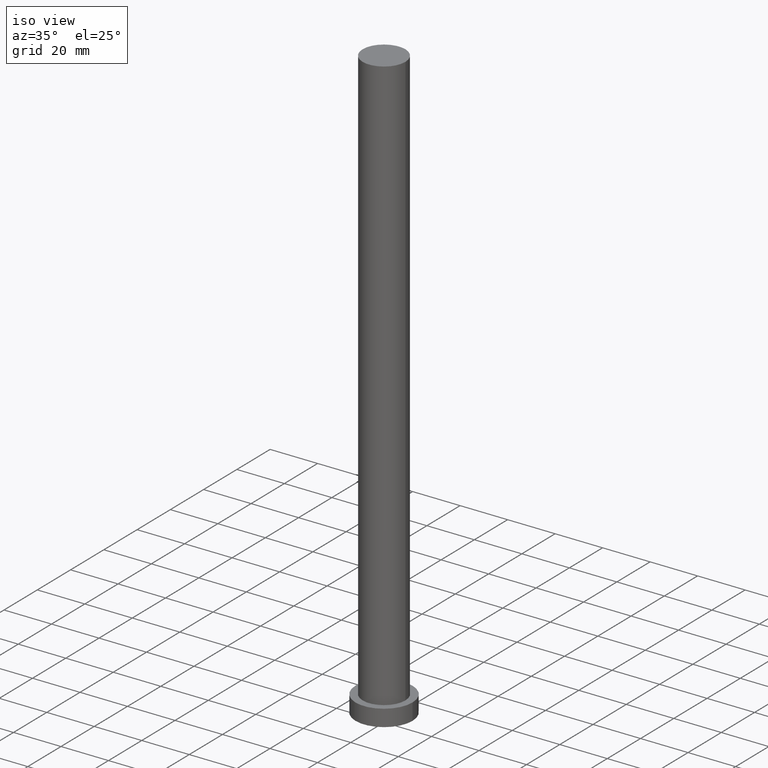
[diagram: clean part render]
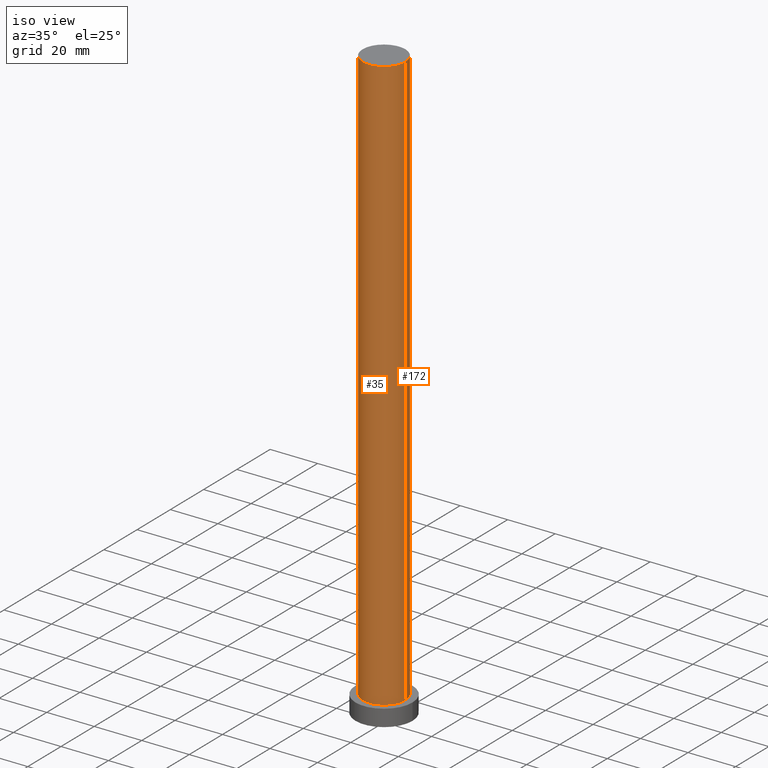
[diagram: same view with one multi-face feature highlighted, each face labeled with its STEP entity id]
A machine part, iso view. The highlighted faces form ONE feature: a constant-radius fillet chain: 2 tangent blend faces with common blend radius 9 mm. The faces share edges in the B-rep.
Their STEP definitions:
[1] entity #35 (Cylinder):
#7 = DIRECTION ( 'NONE',  ( 1.000000000000000000, 0.000000000000000000, 0.000000000000000000 ) ) ;
#16 = CIRCLE ( 'NONE', #204, 9.000000000000000000 ) ;
#21 = VERTEX_POINT ( 'NONE', #54 ) ;
#29 = DIRECTION ( 'NONE',  ( -0.000000000000000000, -0.000000000000000000, -1.000000000000000000 ) ) ;
#31 = DIRECTION ( 'NONE',  ( -0.000000000000000000, -0.000000000000000000, -1.000000000000000000 ) ) ;
#32 = ORIENTED_EDGE ( 'NONE', *, *, #125, .T. ) ;
#35 = ADVANCED_FACE ( 'NONE', ( #230 ), #52, .T. ) ;
#47 = EDGE_LOOP ( 'NONE', ( #121, #243, #248, #32 ) ) ;
#49 = AXIS2_PLACEMENT_3D ( 'NONE', #131, #29, #106 ) ;
#50 = DIRECTION ( 'NONE',  ( -0.000000000000000000, -0.000000000000000000, -1.000000000000000000 ) ) ;
#52 = CYLINDRICAL_SURFACE ( 'NONE', #49, 9.000000000000000000 ) ;
#54 = CARTESIAN_POINT ( 'NONE',  ( -9.000000000000000000, 0.000000000000000000, 250.0000000000000000 ) ) ;
#58 = CARTESIAN_POINT ( 'NONE',  ( 9.000000000000000000, 1.102182119232617714E-15, 7.000000000000000000 ) ) ;
#63 = CARTESIAN_POINT ( 'NONE',  ( 9.000000000000000000, 1.102182119232617714E-15, 250.0000000000000000 ) ) ;
#79 = DIRECTION ( 'NONE',  ( 0.000000000000000000, 0.000000000000000000, 1.000000000000000000 ) ) ;
#87 = CARTESIAN_POINT ( 'NONE',  ( -9.000000000000000000, 0.000000000000000000, 7.000000000000000000 ) ) ;
#99 = VERTEX_POINT ( 'NONE', #63 ) ;
#100 = EDGE_CURVE ( 'NONE', #21, #99, #16, .T. ) ;
#106 = DIRECTION ( 'NONE',  ( -1.000000000000000000, 0.000000000000000000, 0.000000000000000000 ) ) ;
#112 = VERTEX_POINT ( 'NONE', #87 ) ;
#121 = ORIENTED_EDGE ( 'NONE', *, *, #165, .F. ) ;
#125 = EDGE_CURVE ( 'NONE', #112, #137, #152, .T. ) ;
#131 = CARTESIAN_POINT ( 'NONE',  ( 0.000000000000000000, 0.000000000000000000, 250.0000000000000000 ) ) ;
#137 = VERTEX_POINT ( 'NONE', #58 ) ;
#152 = CIRCLE ( 'NONE', #218, 9.000000000000000000 ) ;
#165 = EDGE_CURVE ( 'NONE', #99, #137, #167, .T. ) ;
#166 = VECTOR ( 'NONE', #31, 1000.000000000000000 ) ;
#167 = LINE ( 'NONE', #193, #206 ) ;
#168 = LINE ( 'NONE', #215, #166 ) ;
#189 = DIRECTION ( 'NONE',  ( 0.000000000000000000, 0.000000000000000000, 1.000000000000000000 ) ) ;
#190 = EDGE_CURVE ( 'NONE', #21, #112, #168, .T. ) ;
#193 = CARTESIAN_POINT ( 'NONE',  ( 9.000000000000000000, 1.102182119232617714E-15, 250.0000000000000000 ) ) ;
#204 = AXIS2_PLACEMENT_3D ( 'NONE', #254, #79, #7 ) ;
#206 = VECTOR ( 'NONE', #50, 1000.000000000000000 ) ;
#210 = CARTESIAN_POINT ( 'NONE',  ( 0.000000000000000000, 0.000000000000000000, 7.000000000000000000 ) ) ;
#215 = CARTESIAN_POINT ( 'NONE',  ( -9.000000000000000000, 0.000000000000000000, 250.0000000000000000 ) ) ;
#218 = AXIS2_PLACEMENT_3D ( 'NONE', #210, #189, #247 ) ;
#230 = FACE_OUTER_BOUND ( 'NONE', #47, .T. ) ;
#243 = ORIENTED_EDGE ( 'NONE', *, *, #100, .F. ) ;
#247 = DIRECTION ( 'NONE',  ( 1.000000000000000000, 0.000000000000000000, 0.000000000000000000 ) ) ;
#248 = ORIENTED_EDGE ( 'NONE', *, *, #190, .T. ) ;
#254 = CARTESIAN_POINT ( 'NONE',  ( 0.000000000000000000, 0.000000000000000000, 250.0000000000000000 ) ) ;
[2] entity #172 (Cylinder):
#9 = EDGE_CURVE ( 'NONE', #137, #112, #119, .T. ) ;
#19 = AXIS2_PLACEMENT_3D ( 'NONE', #149, #211, #30 ) ;
#21 = VERTEX_POINT ( 'NONE', #54 ) ;
#30 = DIRECTION ( 'NONE',  ( -1.000000000000000000, 0.000000000000000000, 0.000000000000000000 ) ) ;
#31 = DIRECTION ( 'NONE',  ( -0.000000000000000000, -0.000000000000000000, -1.000000000000000000 ) ) ;
#34 = DIRECTION ( 'NONE',  ( 1.000000000000000000, 0.000000000000000000, 0.000000000000000000 ) ) ;
#41 = AXIS2_PLACEMENT_3D ( 'NONE', #170, #73, #34 ) ;
#46 = ORIENTED_EDGE ( 'NONE', *, *, #165, .T. ) ;
#50 = DIRECTION ( 'NONE',  ( -0.000000000000000000, -0.000000000000000000, -1.000000000000000000 ) ) ;
#53 = FACE_OUTER_BOUND ( 'NONE', #186, .T. ) ;
#54 = CARTESIAN_POINT ( 'NONE',  ( -9.000000000000000000, 0.000000000000000000, 250.0000000000000000 ) ) ;
#58 = CARTESIAN_POINT ( 'NONE',  ( 9.000000000000000000, 1.102182119232617714E-15, 7.000000000000000000 ) ) ;
#63 = CARTESIAN_POINT ( 'NONE',  ( 9.000000000000000000, 1.102182119232617714E-15, 250.0000000000000000 ) ) ;
#73 = DIRECTION ( 'NONE',  ( 0.000000000000000000, 0.000000000000000000, 1.000000000000000000 ) ) ;
#83 = DIRECTION ( 'NONE',  ( 1.000000000000000000, 0.000000000000000000, 0.000000000000000000 ) ) ;
#87 = CARTESIAN_POINT ( 'NONE',  ( -9.000000000000000000, 0.000000000000000000, 7.000000000000000000 ) ) ;
#99 = VERTEX_POINT ( 'NONE', #63 ) ;
#109 = ORIENTED_EDGE ( 'NONE', *, *, #229, .F. ) ;
#112 = VERTEX_POINT ( 'NONE', #87 ) ;
#119 = CIRCLE ( 'NONE', #224, 9.000000000000000000 ) ;
#137 = VERTEX_POINT ( 'NONE', #58 ) ;
#148 = ORIENTED_EDGE ( 'NONE', *, *, #9, .T. ) ;
#149 = CARTESIAN_POINT ( 'NONE',  ( 0.000000000000000000, 0.000000000000000000, 250.0000000000000000 ) ) ;
#163 = CARTESIAN_POINT ( 'NONE',  ( 0.000000000000000000, 0.000000000000000000, 7.000000000000000000 ) ) ;
#165 = EDGE_CURVE ( 'NONE', #99, #137, #167, .T. ) ;
#166 = VECTOR ( 'NONE', #31, 1000.000000000000000 ) ;
#167 = LINE ( 'NONE', #193, #206 ) ;
#168 = LINE ( 'NONE', #215, #166 ) ;
#169 = CYLINDRICAL_SURFACE ( 'NONE', #19, 9.000000000000000000 ) ;
#170 = CARTESIAN_POINT ( 'NONE',  ( 0.000000000000000000, 0.000000000000000000, 250.0000000000000000 ) ) ;
#172 = ADVANCED_FACE ( 'NONE', ( #53 ), #169, .T. ) ;
#184 = DIRECTION ( 'NONE',  ( 0.000000000000000000, 0.000000000000000000, 1.000000000000000000 ) ) ;
#186 = EDGE_LOOP ( 'NONE', ( #109, #46, #148, #194 ) ) ;
#190 = EDGE_CURVE ( 'NONE', #21, #112, #168, .T. ) ;
#193 = CARTESIAN_POINT ( 'NONE',  ( 9.000000000000000000, 1.102182119232617714E-15, 250.0000000000000000 ) ) ;
#194 = ORIENTED_EDGE ( 'NONE', *, *, #190, .F. ) ;
#206 = VECTOR ( 'NONE', #50, 1000.000000000000000 ) ;
#211 = DIRECTION ( 'NONE',  ( -0.000000000000000000, -0.000000000000000000, -1.000000000000000000 ) ) ;
#215 = CARTESIAN_POINT ( 'NONE',  ( -9.000000000000000000, 0.000000000000000000, 250.0000000000000000 ) ) ;
#224 = AXIS2_PLACEMENT_3D ( 'NONE', #163, #184, #83 ) ;
#229 = EDGE_CURVE ( 'NONE', #99, #21, #236, .T. ) ;
#236 = CIRCLE ( 'NONE', #41, 9.000000000000000000 ) ;